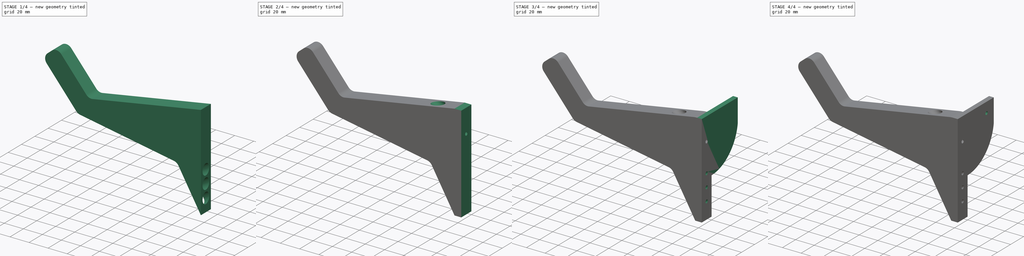
[diagram: build sequence overview — one tinted view per stage of 4, left to right]
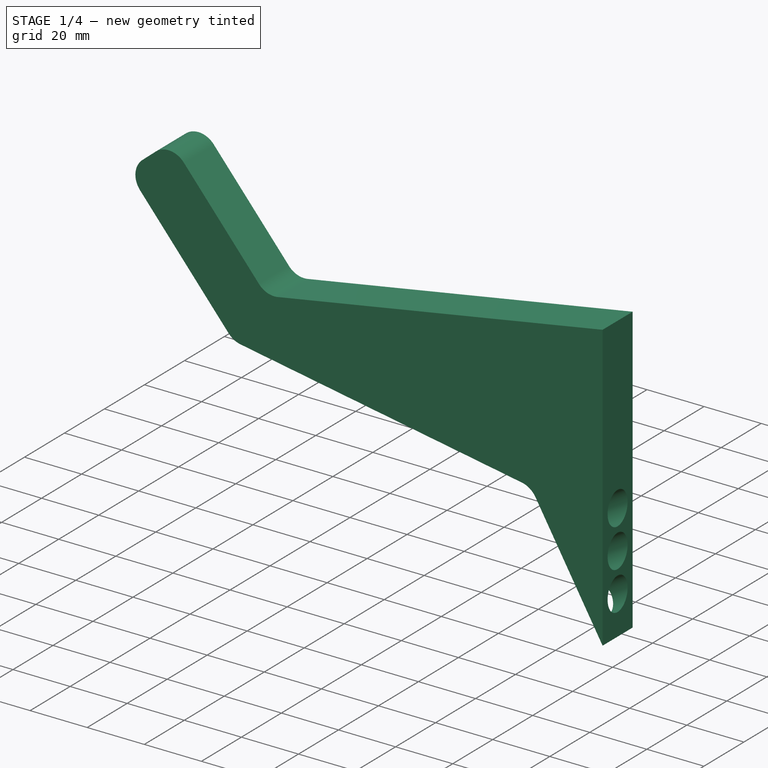
[diagram: stage 1 of 4 — iso view after this stage's code; geometry added in this stage tinted green]
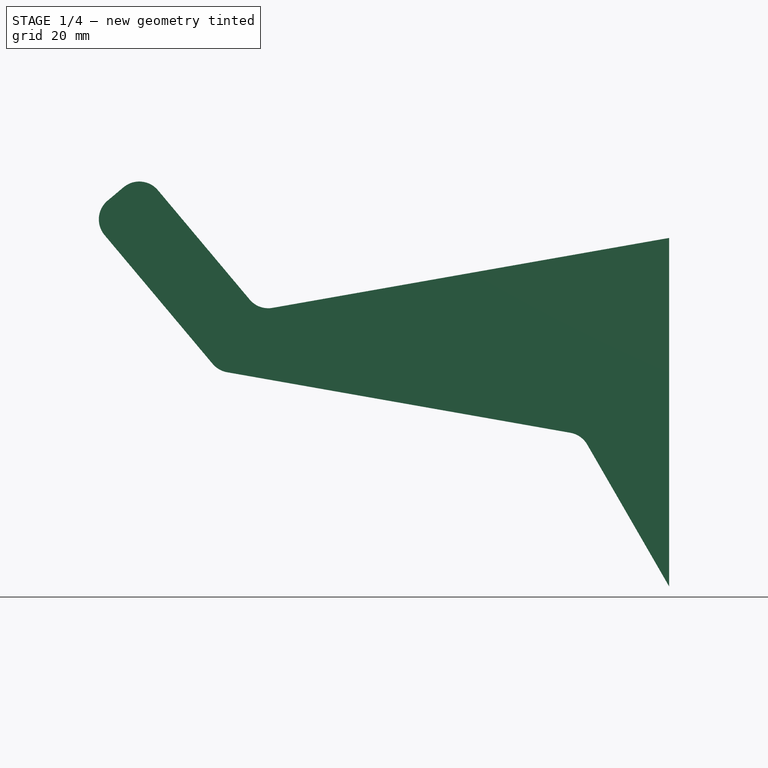
[diagram: stage 1 of 4 — front view after this stage's code; geometry added in this stage tinted green]
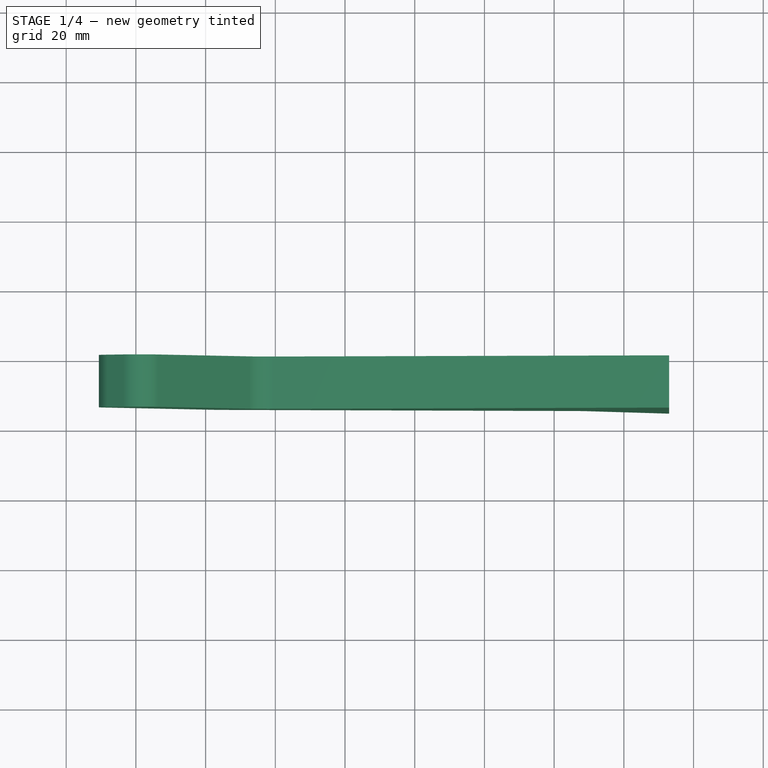
[diagram: stage 1 of 4 — top view after this stage's code; geometry added in this stage tinted green]
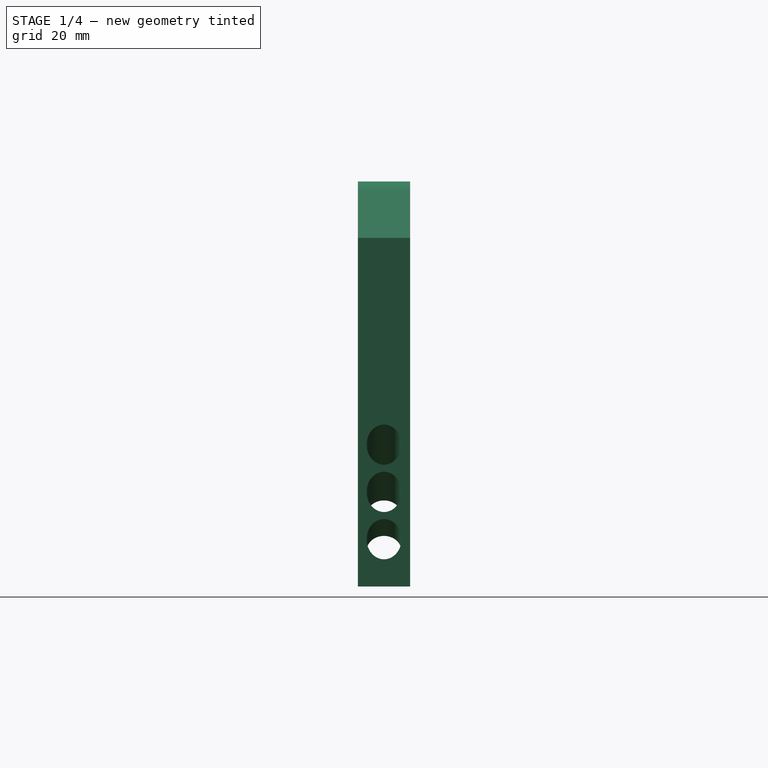
[diagram: stage 1 of 4 — right view after this stage's code; geometry added in this stage tinted green]
FCSTD DOCUMENT  (FreeCAD 1.1R41843 (Git))
Label: кронштейн
License: All rights reserved
LicenseURL: https://en.wikipedia.org/wiki/All_rights_reserved
objects: Sketcher::SketchObject×9, PartDesign::Pocket×6, PartDesign::Pad×3, App::Point×1, Part::DatumPlane×1, PartDesign::SubShapeBinder×1, PartDesign::Fillet×1, PartDesign::Body×1
note: 50 computed .brp shape members not serialized (recipe doc carries the construction recipe); baked Part::Feature solids carry a one-line shape summary decoded from their .brp

FEATURE [App::Point] Origin001  label="Начало координат"
  Role = Origin
FEATURE [Sketcher::SketchObject] Sketch
  ArcFitTolerance = 1e-06
  AttachmentSupport = -> [Origin]
  ExternalTypes = [0]
  FullyConstrained = false
  MakeInternals = false
  MapMode = 5
  Placement = pos=(0,0,0) rot=(1,0,0;1.5708rad)
  sketch-geometry (13):
    g0: LineSegment StartX=-137.974 StartY=-36.1442 StartZ=0 EndX=-168.995 EndY=0.825497 EndZ=0
    g1: LineSegment StartX=-168.133 StartY=10.6873 StartZ=0 EndX=-163.536 EndY=14.544 EndZ=0
    g2: LineSegment StartX=-153.675 StartY=13.6812 StartZ=0 EndX=-127.368 EndY=-17.6701 EndZ=0
    g3: LineSegment StartX=-120.79 StartY=-20.0642 StartZ=0 EndX=-7 EndY=0 EndZ=0
    g4: LineSegment StartX=-7 StartY=0 StartZ=0 EndX=-7 EndY=-100 EndZ=0
    g5: LineSegment [constr] StartX=-7 StartY=27.2708 StartZ=0 EndX=-7 EndY=0 EndZ=0
    g6: LineSegment StartX=-7 StartY=-100 StartZ=0 EndX=-30.5 EndY=-59.2968 EndZ=0
    g7: LineSegment StartX=-35.3466 StartY=-55.9032 StartZ=0 EndX=-133.827 EndY=-38.5383 EndZ=0
    g8: ArcOfCircle CenterX=-122.005 CenterY=-13.1706 CenterZ=0 NormalX=0 NormalY=0 NormalZ=1 AngleXU=0 Radius=7 StartAngle=3.83972 EndAngle=4.88692
    g9: ArcOfCircle CenterX=-159.037 CenterY=9.18174 CenterZ=0 NormalX=0 NormalY=0 NormalZ=1 AngleXU=0 Radius=7 StartAngle=0.698132 EndAngle=2.26893
    g10: ArcOfCircle CenterX=-163.633 CenterY=5.32501 CenterZ=0 NormalX=0 NormalY=0 NormalZ=1 AngleXU=0 Radius=7 StartAngle=2.26893 EndAngle=3.83972
    g11: ArcOfCircle CenterX=-132.612 CenterY=-31.6447 CenterZ=0 NormalX=0 NormalY=0 NormalZ=1 AngleXU=0 Radius=7 StartAngle=3.83972 EndAngle=4.53786
    g12: ArcOfCircle CenterX=-36.5622 CenterY=-62.7968 CenterZ=0 NormalX=0 NormalY=0 NormalZ=1 AngleXU=0 Radius=7 StartAngle=0.523599 EndAngle=1.39626
  constraints (33):
    c: Coincident(g4,g3)
    c: Vertical(g4)
    c: Coincident(g5,g3)
    c: Vertical(g5)
    c: Angle(g3,g4) = 1.39626
    c: DistanceX(g3,g-1) = 7
    c: Coincident(g4,g6)
    c: Angle(g4,g6) = 0.523599
    c: Angle(g7,g6) = 2.26893
    c: Angle(g7,g0) = 2.44346
    c: Angle(g0,g1) = 1.5708
    c: Angle(g1,g2) = 1.5708
    c: Tangent(g12,g7) = -1.5708
    c: Tangent(g12,g6) = -1.5708
    c: Tangent(g11,g7) = 1.5708
    c: Tangent(g11,g0) = 1.5708
    c: Tangent(g10,g0) = 1.5708
    c: Tangent(g10,g1) = 1.5708
    c: Tangent(g9,g1) = 1.5708
    c: Tangent(g9,g2) = 1.5708
    c: Tangent(g8,g2) = -1.5708
    c: Tangent(g8,g3) = -1.5708
    c: Distance(g2,g0) = 20
    c: Distance(g6,g6) = 47
    c: Equal(g10,g9)
    c: Equal(g9,g8)
    c: Radius(g8) = 7
    c: Equal(g12,g8)
    c: Equal(g8,g11)
    c: Distance(g7,g7) = 100
    c: DistanceY(g4,g4) = 100
    c: Distance(g3,g1) = 55
    c: PointOnObject(g3,g-1)
FEATURE [PartDesign::Pad] Pad
  Direction = (0,-1,0)
  Length = 15
  Length2 = 10
  Profile = -> Sketch
  ReferenceAxis = -> Sketch [N_Axis]
  Refine = true
  Suppressed = false
  Type = 0
FEATURE [Sketcher::SketchObject] Sketch001
  ArcFitTolerance = 1e-06
  AttachmentSupport = -> [Pad]
  ExternalGeometry = -> [Pad]
  ExternalTypes = [0]
  FullyConstrained = true
  MakeInternals = false
  MapMode = 5
  Placement = pos=(-48.5513,-6.2e-15,-28.0311) rot=(0.654654,-0.654654,-0.377964;2.41886rad)
  sketch-geometry (7):
    g0: LineSegment [constr] StartX=7.5 StartY=-36.1025 StartZ=0 EndX=7.5 EndY=-47.8525 EndZ=0
    g1: LineSegment [constr] StartX=7.5 StartY=-47.8525 StartZ=0 EndX=7.5 EndY=-59.6025 EndZ=0
    g2: LineSegment [constr] StartX=7.5 StartY=-59.6025 StartZ=0 EndX=7.5 EndY=-71.3525 EndZ=0
    g3: LineSegment [constr] StartX=7.5 StartY=-71.3525 StartZ=0 EndX=7.5 EndY=-83.1025 EndZ=0
    g4: Circle CenterX=7.5 CenterY=-47.8525 CenterZ=0 NormalX=0 NormalY=0 NormalZ=1 AngleXU=0 Radius=5
    g5: Circle CenterX=7.5 CenterY=-59.6025 CenterZ=0 NormalX=0 NormalY=0 NormalZ=1 AngleXU=0 Radius=5
    g6: Circle CenterX=7.5 CenterY=-71.3525 CenterZ=0 NormalX=0 NormalY=0 NormalZ=1 AngleXU=0 Radius=5
  constraints (17):
    c: Symmetric(g-4,g-4,g0)
    c: Coincident(g0,g1)
    c: Coincident(g1,g2)
    c: Coincident(g2,g3)
    c: Symmetric(g-3,g-3,g3)
    c: Equal(g3,g2)
    c: Equal(g2,g1)
    c: Equal(g1,g0)
    c: Vertical(g0)
    c: Vertical(g2)
    c: Vertical(g1)
    c: Coincident(g4,g0)
    c: Coincident(g5,g1)
    c: Coincident(g6,g2)
    c: Equal(g6,g5)
    c: Equal(g5,g4)
    c: Diameter(g4) = 10
FEATURE [PartDesign::Pocket] Pocket
  BaseFeature = -> Pad
  Direction = (0.87,0,0.5)
  Length = 5
  Length2 = 5
  Profile = -> Sketch001
  ReferenceAxis = -> Sketch001 [N_Axis]
  Refine = true
  Suppressed = false
  Type = 1
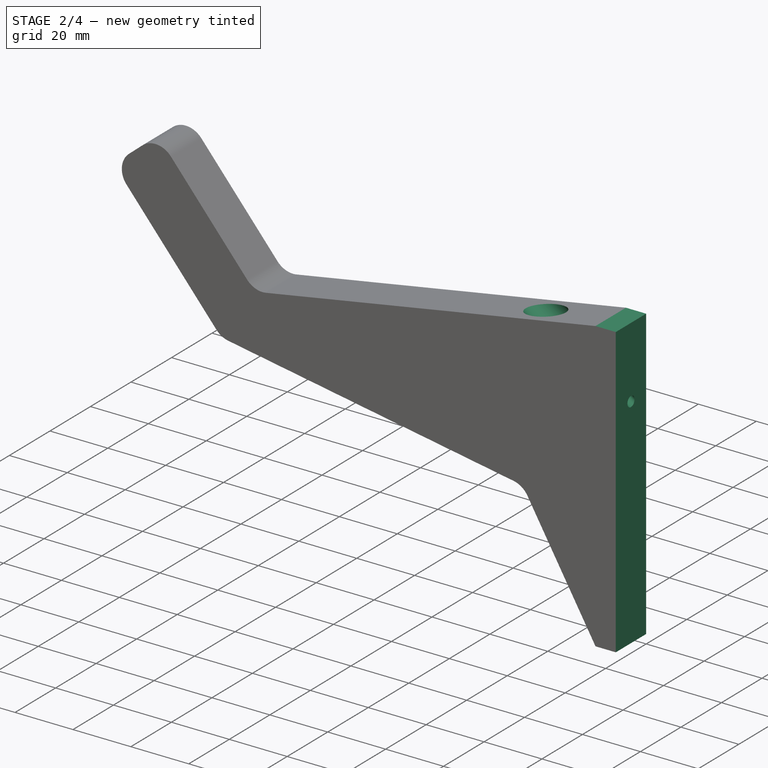
[diagram: stage 2 of 4 — iso view after this stage's code; geometry added in this stage tinted green]
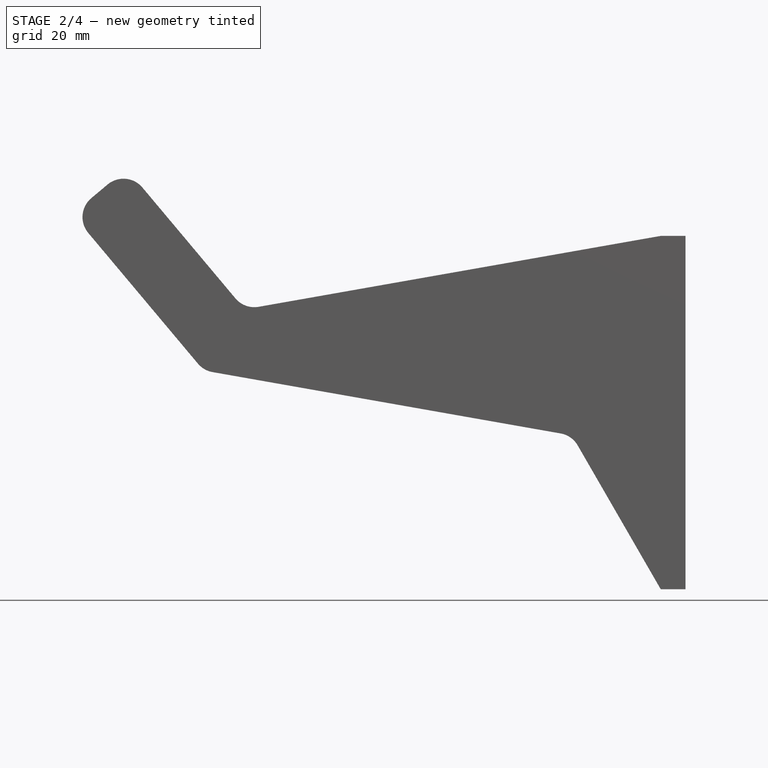
[diagram: stage 2 of 4 — front view after this stage's code; geometry added in this stage tinted green]
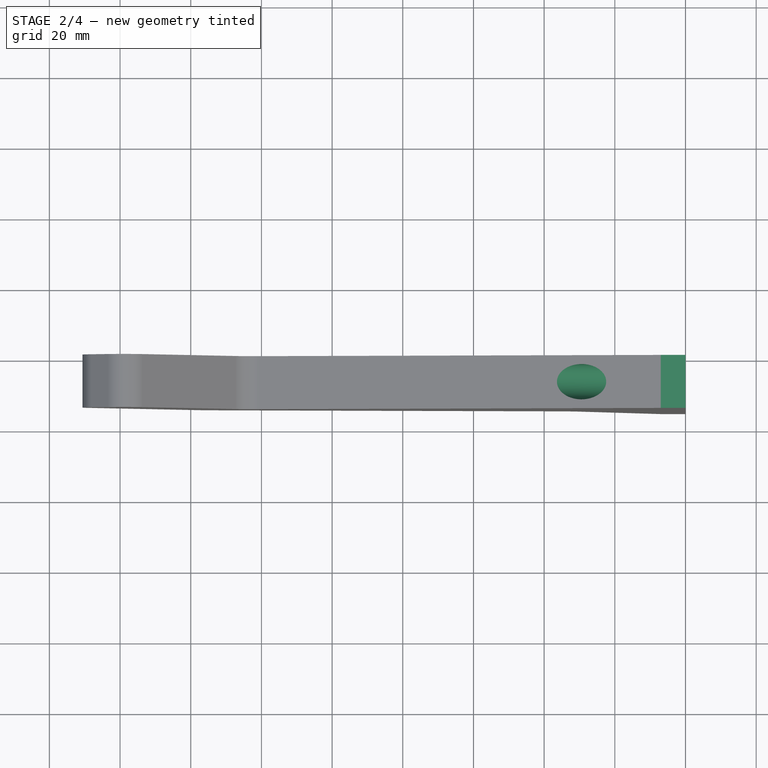
[diagram: stage 2 of 4 — top view after this stage's code; geometry added in this stage tinted green]
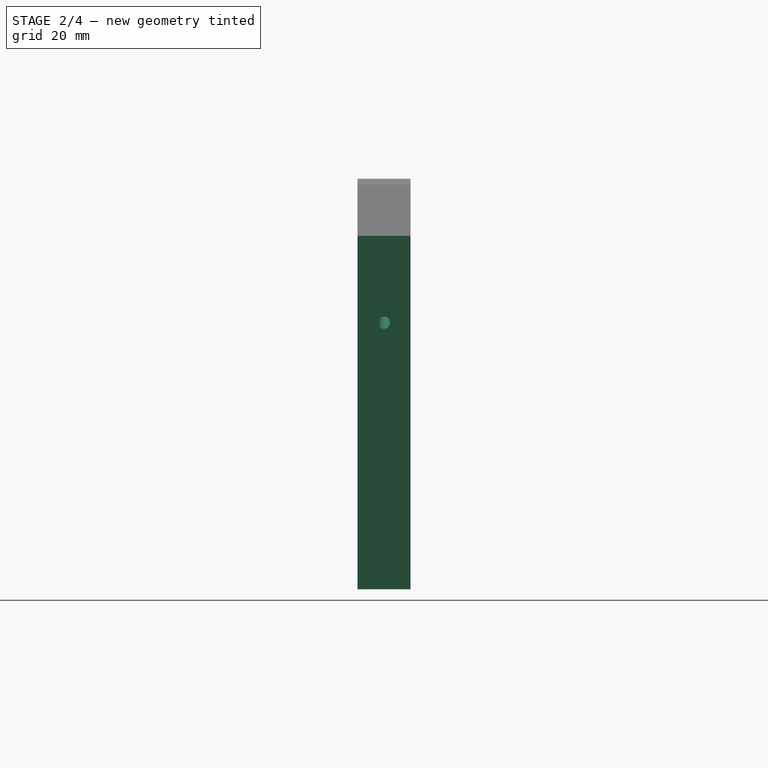
[diagram: stage 2 of 4 — right view after this stage's code; geometry added in this stage tinted green]
FEATURE [Part::DatumPlane] DatumPlane
  AttachmentOffset = pos=(0,0,0) rot=(0,-1,0;0.785398rad)
  AttachmentSupport = -> [Pocket]
  MapMode = 5
  Placement = pos=(-0.211076,3e-16,1.19707) rot=(0,-1,0;0.959931rad)
FEATURE [Sketcher::SketchObject] Sketch002
  ArcFitTolerance = 1e-06
  AttachmentSupport = -> [DatumPlane]
  ExternalTypes = [0]
  FullyConstrained = true
  MakeInternals = false
  MapMode = 5
  Placement = pos=(-0.211076,3e-16,1.19707) rot=(0,-1,0;0.959931rad)
FEATURE [Sketcher::SketchObject] Sketch003
  ArcFitTolerance = 1e-06
  AttachmentOffset = pos=(0,0,34) rot=(0,0,1;0rad)
  AttachmentSupport = -> [DatumPlane]
  ExternalGeometry = -> [Pocket]
  ExternalTypes = [0,0]
  FullyConstrained = false
  MakeInternals = false
  MapMode = 5
  Placement = pos=(-28.0622,3e-16,20.6987) rot=(0,-1,0;0.959931rad)
  sketch-geometry (3):
    g0: Circle CenterX=-20.9657 CenterY=-7.5 CenterZ=0 NormalX=0 NormalY=0 NormalZ=1 AngleXU=0 Radius=5
    g1: GeomPoint X=-20.9657 Y=-1.2e-15 Z=0
    g2: GeomPoint X=-20.9657 Y=-15 Z=0
  constraints (5):
    c: Diameter(g0) = 10
    c: PointOnObject(g1,g-3)
    c: PointOnObject(g2,g-4)
    c: Vertical(g2,g1)
    c: Symmetric(g2,g1,g0)
FEATURE [PartDesign::Pocket] Pocket001
  BaseFeature = -> Pocket
  Direction = (0.82,0,-0.57)
  Length = 5
  Length2 = 5
  Profile = -> Sketch003
  ReferenceAxis = -> Sketch003 [N_Axis]
  Refine = true
  Suppressed = false
  Type = 1
FEATURE [PartDesign::SubShapeBinder] Binder
  BindCopyOnChange = 0
  BindMode = 0
  ClaimChildren = false
  Context = -> Body [Binder.]
  Fuse = false
  MakeFace = true
  OffsetFill = false
  OffsetIntersection = false
  OffsetJoinType = 0
  OffsetOpenResult = false
  PartialLoad = false
  Refine = true
  Relative = true
  Support = -> [Pocket001[Edge34,Edge25,Edge16,Edge36]]
  _Version = 2
FEATURE [PartDesign::Pad] Pad001
  BaseFeature = -> Pocket001
  Direction = (1,0,0)
  Length = 7
  Length2 = 10
  Profile = -> Binder
  Refine = true
  Suppressed = false
  Type = 0
FEATURE [Sketcher::SketchObject] Sketch004
  ArcFitTolerance = 1e-06
  AttachmentSupport = -> [Pad001]
  ExternalGeometry = -> [Pad001]
  ExternalTypes = [0]
  FullyConstrained = true
  MakeInternals = false
  MapMode = 5
  Placement = pos=(-7,0,0) rot=(0.57735,-0.57735,-0.57735;2.0944rad)
  sketch-geometry (1):
    g0: Circle CenterX=7.5 CenterY=-19.6437 CenterZ=0 NormalX=0 NormalY=0 NormalZ=1 AngleXU=0 Radius=1.75
  constraints (2):
    c: Coincident(g0,g-3)
    c: Diameter(g0) = 3.5
FEATURE [PartDesign::Pocket] Pocket002
  BaseFeature = -> Pad001
  Direction = (-0.82,0,0.57)
  Length = 5
  Length2 = 5
  Profile = -> Sketch004
  ReferenceAxis = -> Pad001 [Edge42]
  Refine = true
  Reversed = true
  Suppressed = false
  Type = 1
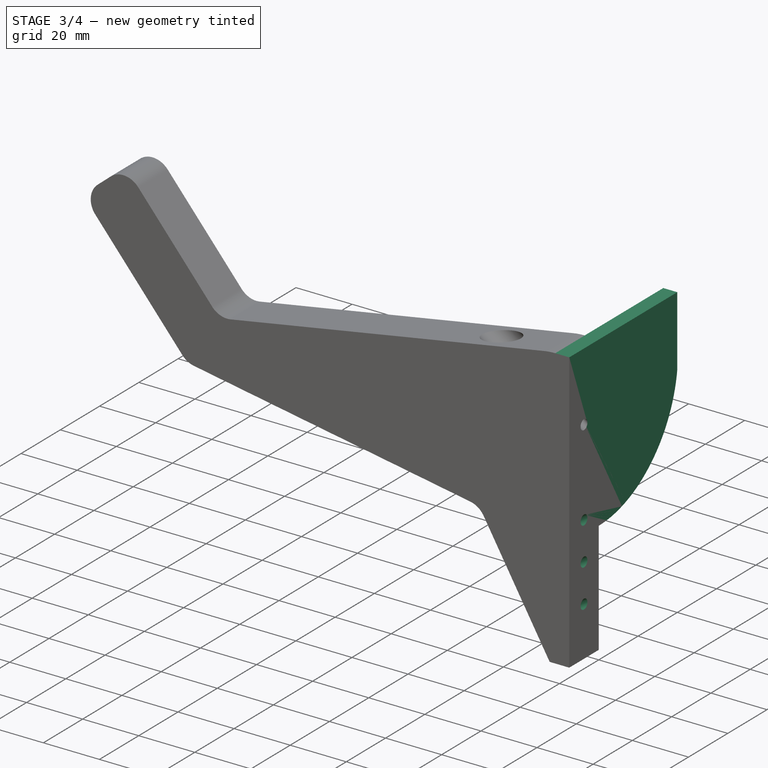
[diagram: stage 3 of 4 — iso view after this stage's code; geometry added in this stage tinted green]
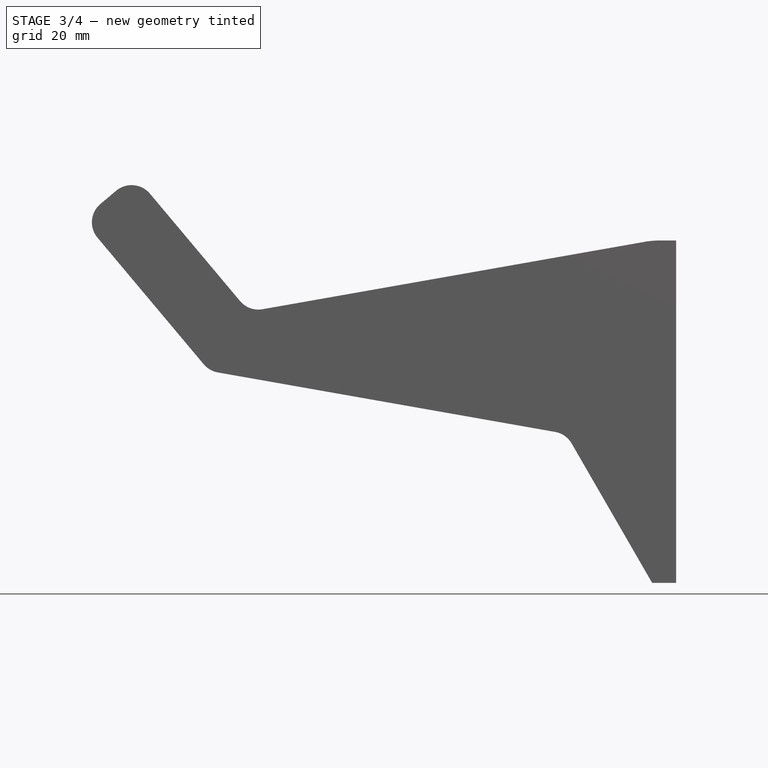
[diagram: stage 3 of 4 — front view after this stage's code; geometry added in this stage tinted green]
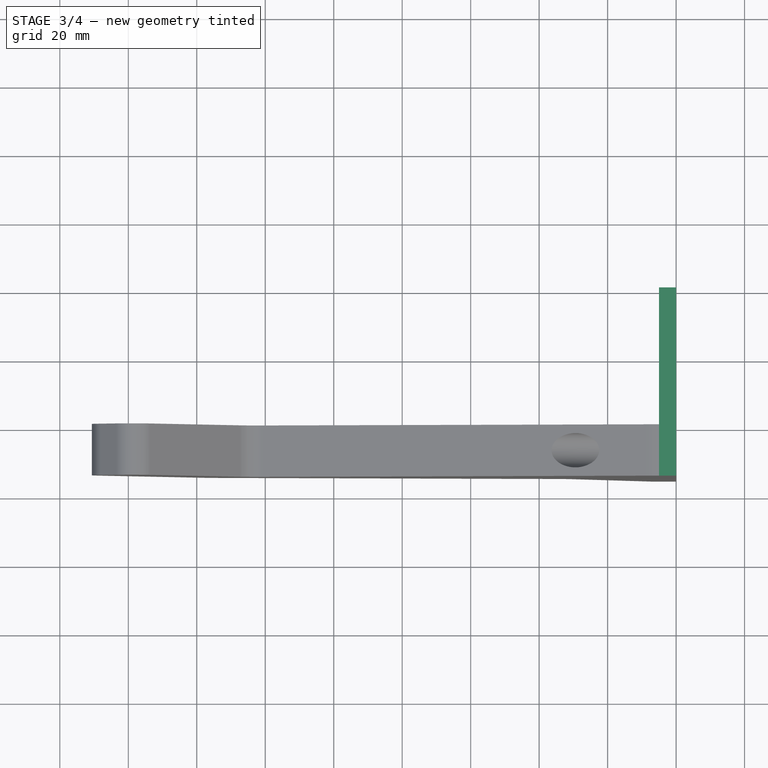
[diagram: stage 3 of 4 — top view after this stage's code; geometry added in this stage tinted green]
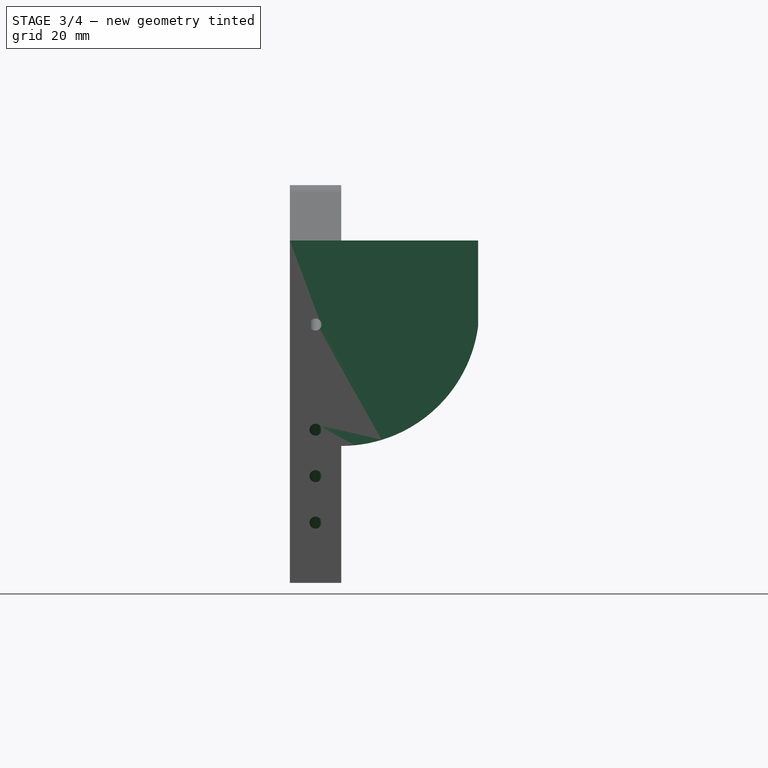
[diagram: stage 3 of 4 — right view after this stage's code; geometry added in this stage tinted green]
FEATURE [Sketcher::SketchObject] Sketch005
  ArcFitTolerance = 1e-06
  AttachmentSupport = -> [Pocket002]
  ExternalGeometry = -> [Pocket002]
  ExternalTypes = [0,0,0]
  FullyConstrained = true
  MakeInternals = false
  MapMode = 5
  Placement = pos=(-7,0,0) rot=(0.57735,-0.57735,-0.57735;2.0944rad)
  sketch-geometry (3):
    g0: Circle CenterX=7.5 CenterY=-59.2968 CenterZ=0 NormalX=0 NormalY=0 NormalZ=1 AngleXU=0 Radius=1.75
    g1: Circle CenterX=7.5 CenterY=-72.8645 CenterZ=0 NormalX=0 NormalY=0 NormalZ=1 AngleXU=0 Radius=1.75
    g2: Circle CenterX=7.5 CenterY=-86.4323 CenterZ=0 NormalX=0 NormalY=0 NormalZ=1 AngleXU=0 Radius=1.75
  constraints (6):
    c: Coincident(g0,g-3)
    c: Coincident(g1,g-4)
    c: Coincident(g2,g-5)
    c: Equal(g2,g1)
    c: Equal(g1,g0)
    c: Diameter(g0) = 3.5
FEATURE [PartDesign::Pocket] Pocket003
  BaseFeature = -> Pocket002
  Direction = (-0.866025,0,-0.5)
  Length = 5
  Length2 = 5
  Profile = -> Sketch005
  ReferenceAxis = -> Pocket002 [Edge38]
  Refine = true
  Reversed = true
  Suppressed = false
  Type = 1
FEATURE [Sketcher::SketchObject] Sketch006
  ArcFitTolerance = 1e-06
  AttachmentSupport = -> [Pocket003]
  ExternalGeometry = -> [Pocket003]
  ExternalTypes = [0]
  FullyConstrained = true
  MakeInternals = false
  MapMode = 5
  Placement = pos=(0,0,0) rot=(0.57735,0.57735,0.57735;2.0944rad)
  sketch-geometry (4):
    g0: LineSegment StartX=0 StartY=0 StartZ=0 EndX=40 EndY=0 EndZ=0
    g1: LineSegment StartX=40 StartY=0 StartZ=0 EndX=40 EndY=-25 EndZ=0
    g2: LineSegment StartX=-1.18e-14 StartY=-60 StartZ=0 EndX=0 EndY=0 EndZ=0
    g3: ArcOfCircle CenterX=-4.4e-15 CenterY=-19.6429 CenterZ=0 NormalX=0 NormalY=0 NormalZ=1 AngleXU=0 Radius=40.3571 StartAngle=4.71239 EndAngle=6.15005
  constraints (12):
    c: Coincident(g-1,g0)
    c: Coincident(g0,g1)
    c: Vertical(g1)
    c: Coincident(g2,g0)
    c: PointOnObject(g2,g-3)
    c: Horizontal(g0)
    c: PointOnObject(g3,g2)
    c: Coincident(g3,g1)
    c: Coincident(g3,g2)
    c: DistanceY(g2,g2) = 60
    c: DistanceX(g0,g0) = 40
    c: DistanceY(g1,g1) = 25
FEATURE [PartDesign::Pad] Pad002
  BaseFeature = -> Pocket003
  Direction = (1,0,0)
  Length = 5
  Length2 = 10
  Profile = -> Sketch006
  ReferenceAxis = -> Sketch006 [N_Axis]
  Refine = true
  Reversed = true
  Suppressed = false
  Type = 0
FEATURE [PartDesign::Fillet] Fillet
  Base = -> Pad002 [Edge52]
  BaseFeature = -> Pad002
  Radius = 23
  Refine = true
  SupportTransform = false
  Suppressed = false
  UseAllEdges = false
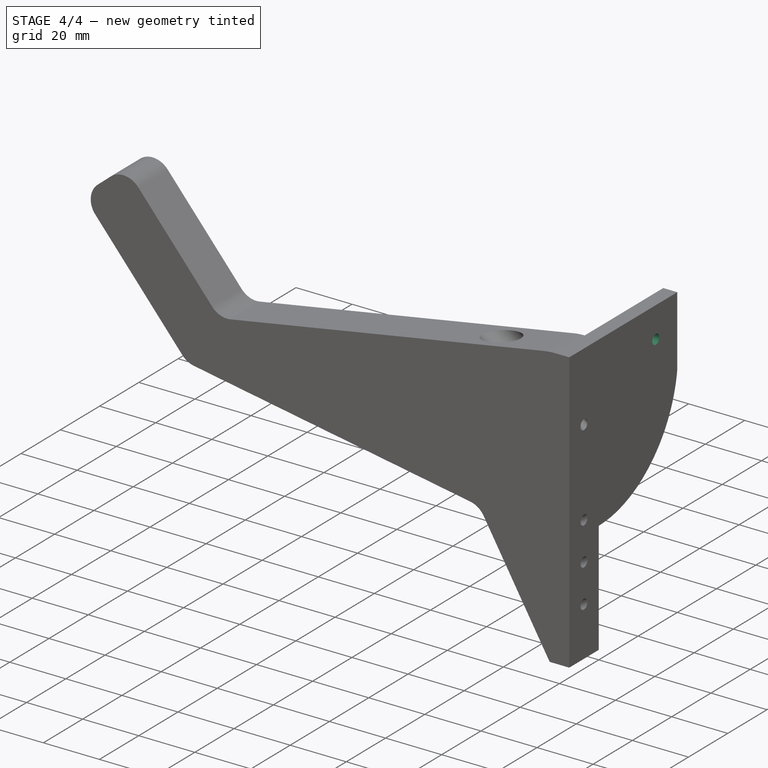
[diagram: stage 4 of 4 — iso view after this stage's code; geometry added in this stage tinted green]
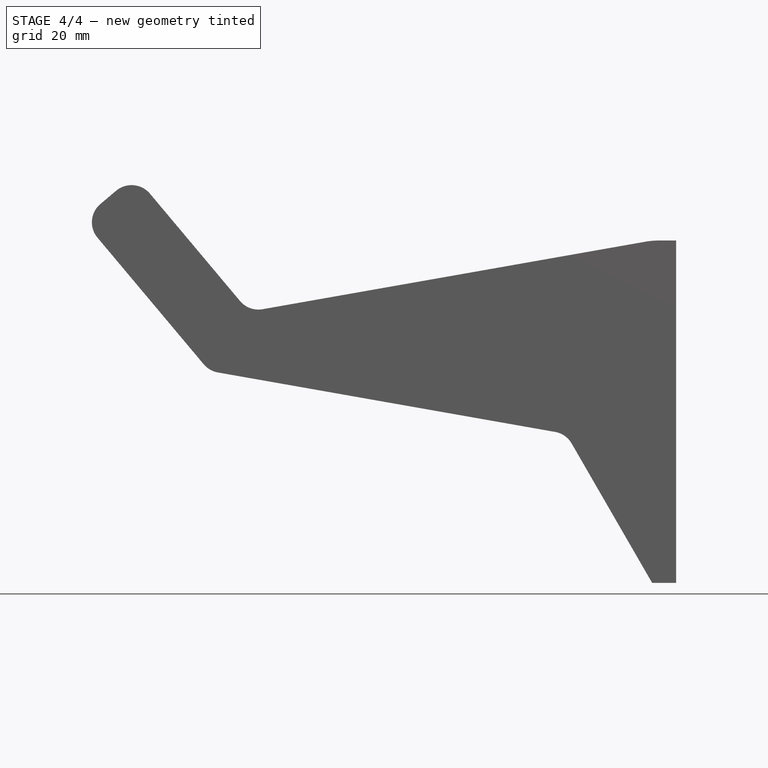
[diagram: stage 4 of 4 — front view after this stage's code; geometry added in this stage tinted green]
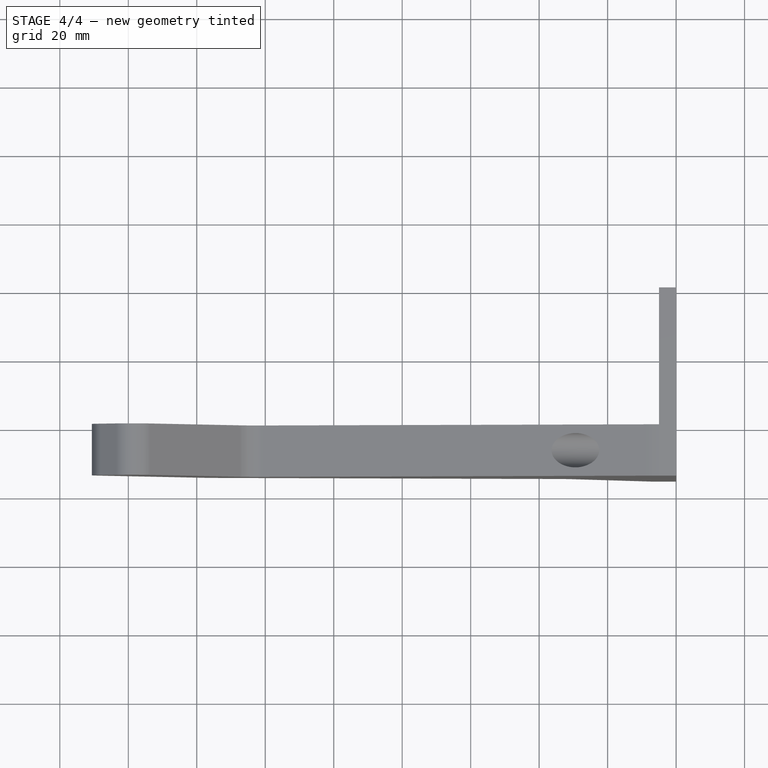
[diagram: stage 4 of 4 — top view after this stage's code; geometry added in this stage tinted green]
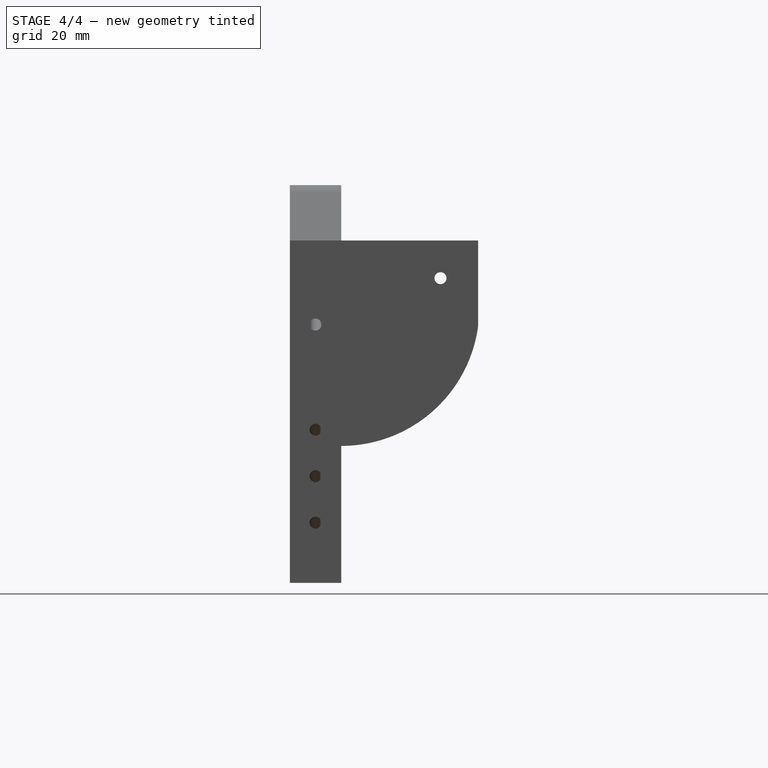
[diagram: stage 4 of 4 — right view after this stage's code; geometry added in this stage tinted green]
FEATURE [Sketcher::SketchObject] Sketch007
  ArcFitTolerance = 1e-06
  AttachmentSupport = -> [Fillet]
  ExternalGeometry = -> [Fillet]
  ExternalTypes = [0,0]
  FullyConstrained = true
  MakeInternals = false
  MapMode = 5
  Placement = pos=(-5,0,0) rot=(0.57735,-0.57735,-0.57735;2.0944rad)
  sketch-geometry (1):
    g0: Circle CenterX=-29 CenterY=-11 CenterZ=0 NormalX=0 NormalY=0 NormalZ=1 AngleXU=0 Radius=5
  constraints (3):
    c: Distance(g0,g-3) = 6
    c: Diameter(g0) = 10
    c: Distance(g0,g-4) = 6
FEATURE [PartDesign::Pocket] Pocket004
  BaseFeature = -> Fillet
  Direction = (1,0,0)
  Length = 2
  Length2 = 5
  Profile = -> Sketch007
  ReferenceAxis = -> Sketch007 [N_Axis]
  Refine = true
  Suppressed = false
  Type = 0
FEATURE [Sketcher::SketchObject] Sketch008
  ArcFitTolerance = 1e-06
  AttachmentSupport = -> [Pocket004]
  ExternalGeometry = -> [Pocket004]
  ExternalTypes = [0]
  FullyConstrained = true
  MakeInternals = false
  MapMode = 5
  Placement = pos=(-3,0,0) rot=(0.57735,-0.57735,-0.57735;2.0944rad)
  sketch-geometry (1):
    g0: Circle CenterX=-29 CenterY=-11 CenterZ=0 NormalX=0 NormalY=0 NormalZ=1 AngleXU=0 Radius=1.75
  constraints (2):
    c: Coincident(g0,g-3)
    c: Diameter(g0) = 3.5
FEATURE [PartDesign::Pocket] Pocket005
  BaseFeature = -> Pocket004
  Direction = (1,0,0)
  Length = 5
  Length2 = 5
  Profile = -> Sketch008
  ReferenceAxis = -> Sketch008 [N_Axis]
  Refine = true
  Suppressed = false
  Type = 1
FEATURE [PartDesign::Body] Body  label="Тело"
  AllowCompound = false
  Group = -> [Sketch,Pad,Sketch001,Pocket,DatumPlane,Sketch002,Sketch003,Pocket001,Binder,Pad001,Sketch004,Pocket002,Sketch005,Pocket003,Sketch006,Pad002,Fillet,Sketch007,Pocket004,Sketch008,Pocket005]
  Origin = -> Origin
  Tip = -> Pocket005
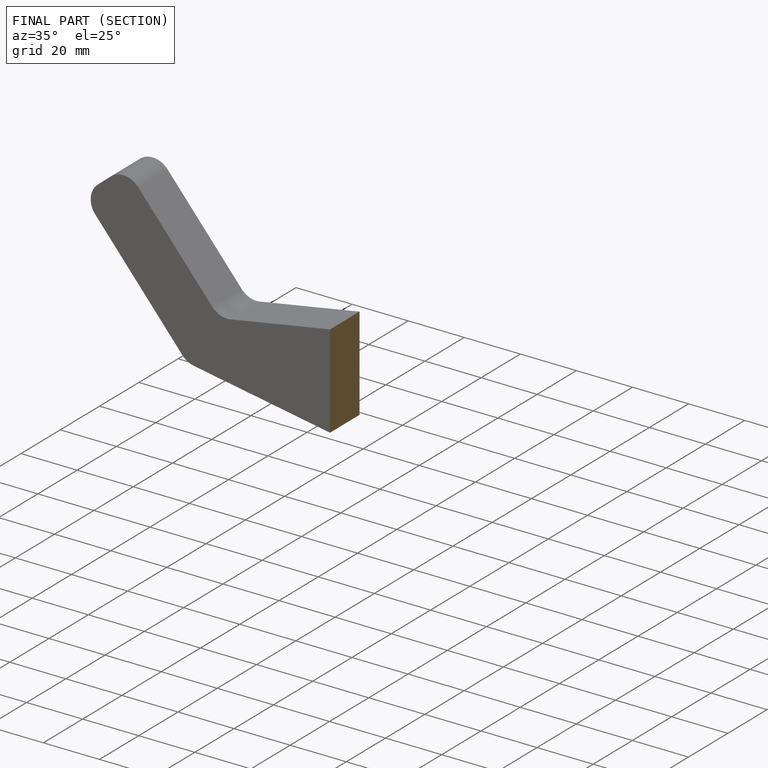
[diagram: finished part — half-section view (interior)]
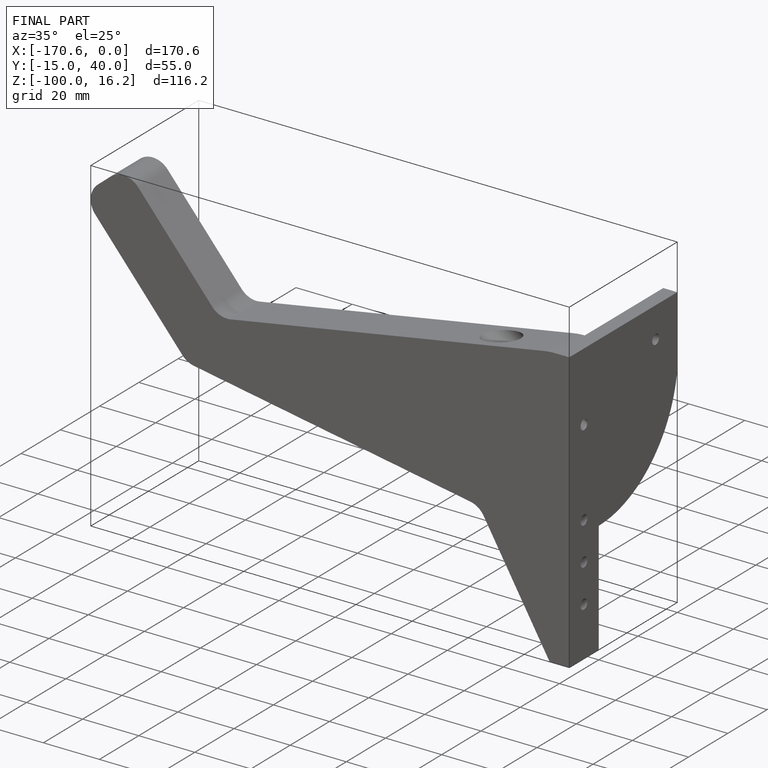
[diagram: finished part — iso view with bounding-box wireframe]
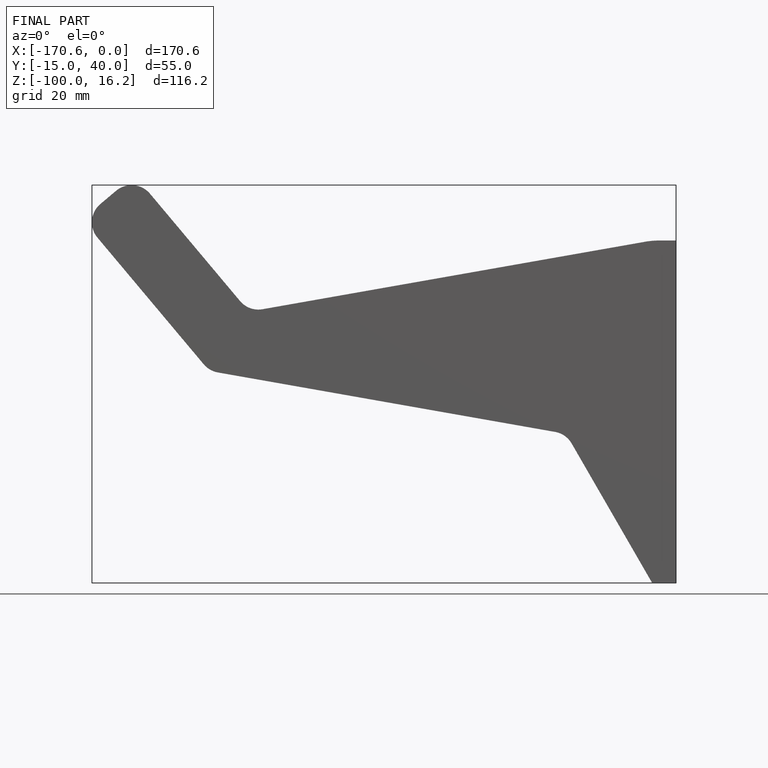
[diagram: finished part — front view with bounding-box wireframe]
